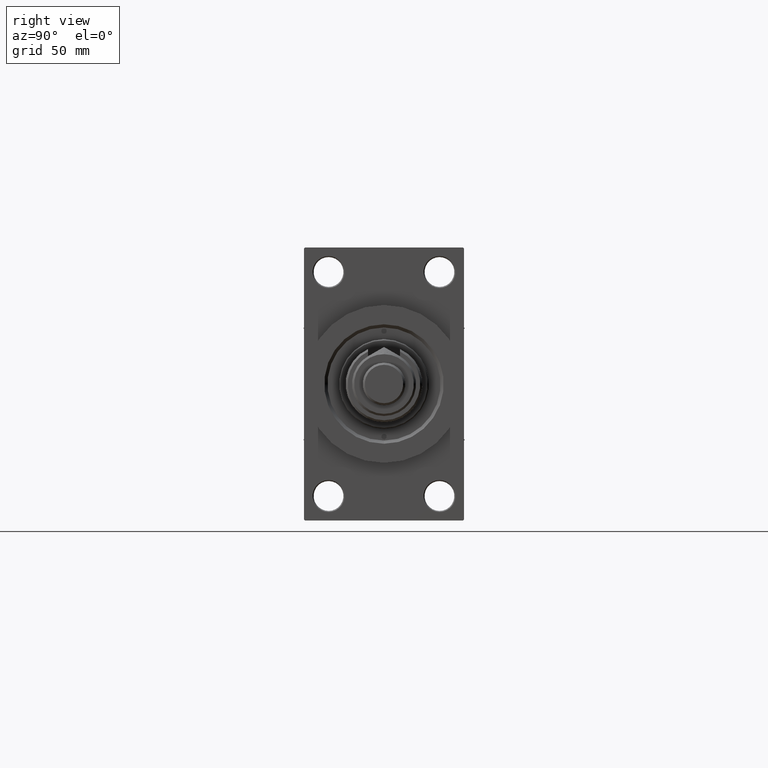
[diagram: clean part render]
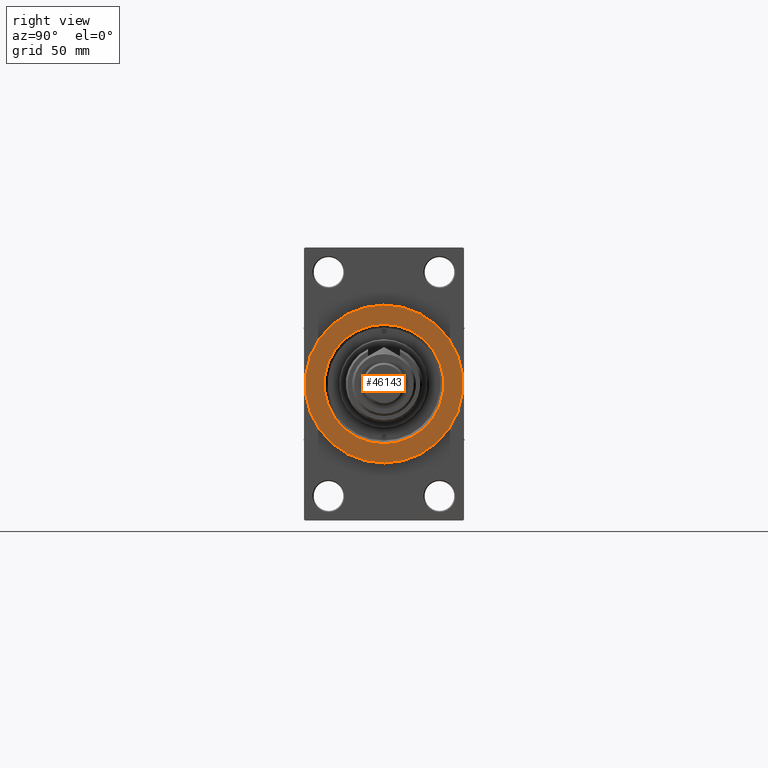
[diagram: same view with one face highlighted and labeled with its STEP entity id]
A machine part, right view. The second image highlights one B-rep face of the part: STEP entity #46143.
In plain terms, the highlighted planar face has unit normal (1, 0, 0).
Its self-contained STEP definition (entity closure, byte-faithful):
#3921 = VERTEX_POINT ( 'NONE', #7256 ) ;
#4598 = CARTESIAN_POINT ( 'NONE',  ( 184.0000000000000000, 0.000000000000000000, 0.000000000000000000 ) ) ;
#6930 = CARTESIAN_POINT ( 'NONE',  ( 184.0000000000000000, 4.531193156845206793E-15, -37.00000000000000000 ) ) ;
#7256 = CARTESIAN_POINT ( 'NONE',  ( 184.0000000000000000, 0.000000000000000000, -28.00000000000002487 ) ) ;
#7475 = PLANE ( 'NONE',  #14826 ) ;
#10164 = CARTESIAN_POINT ( 'NONE',  ( 184.0000000000000000, 3.429011037612592037E-15, 28.00000000000002487 ) ) ;
#10725 = ORIENTED_EDGE ( 'NONE', *, *, #39923, .T. ) ;
#11284 = CARTESIAN_POINT ( 'NONE',  ( 184.0000000000000000, 0.000000000000000000, 0.000000000000000000 ) ) ;
#11463 = CIRCLE ( 'NONE', #33364, 28.00000000000002487 ) ;
#12610 = DIRECTION ( 'NONE',  ( 0.000000000000000000, 0.000000000000000000, -1.000000000000000000 ) ) ;
#14602 = CARTESIAN_POINT ( 'NONE',  ( 184.0000000000000000, 0.000000000000000000, 0.000000000000000000 ) ) ;
#14826 = AXIS2_PLACEMENT_3D ( 'NONE', #14602, #30858, #37979 ) ;
#15106 = FACE_BOUND ( 'NONE', #31946, .T. ) ;
#15207 = CARTESIAN_POINT ( 'NONE',  ( 184.0000000000000000, 0.000000000000000000, 0.000000000000000000 ) ) ;
#15577 = ORIENTED_EDGE ( 'NONE', *, *, #22669, .T. ) ;
#16171 = DIRECTION ( 'NONE',  ( 1.000000000000000000, 0.000000000000000000, 0.000000000000000000 ) ) ;
#16498 = CIRCLE ( 'NONE', #19747, 37.00000000000000000 ) ;
#18838 = ORIENTED_EDGE ( 'NONE', *, *, #24659, .T. ) ;
#18907 = EDGE_CURVE ( 'NONE', #50239, #47809, #30973, .T. ) ;
#19747 = AXIS2_PLACEMENT_3D ( 'NONE', #11284, #34654, #22218 ) ;
#22043 = AXIS2_PLACEMENT_3D ( 'NONE', #32415, #16171, #12610 ) ;
#22218 = DIRECTION ( 'NONE',  ( 0.000000000000000000, 0.000000000000000000, -1.000000000000000000 ) ) ;
#22669 = EDGE_CURVE ( 'NONE', #47809, #50239, #16498, .T. ) ;
#24659 = EDGE_CURVE ( 'NONE', #3921, #24785, #44995, .T. ) ;
#24785 = VERTEX_POINT ( 'NONE', #10164 ) ;
#26307 = AXIS2_PLACEMENT_3D ( 'NONE', #4598, #47780, #47039 ) ;
#30858 = DIRECTION ( 'NONE',  ( 1.000000000000000000, 0.000000000000000000, 0.000000000000000000 ) ) ;
#30973 = CIRCLE ( 'NONE', #22043, 37.00000000000000000 ) ;
#31946 = EDGE_LOOP ( 'NONE', ( #18838, #10725 ) ) ;
#32415 = CARTESIAN_POINT ( 'NONE',  ( 184.0000000000000000, 0.000000000000000000, 0.000000000000000000 ) ) ;
#33364 = AXIS2_PLACEMENT_3D ( 'NONE', #15207, #49276, #45975 ) ;
#34654 = DIRECTION ( 'NONE',  ( 1.000000000000000000, 0.000000000000000000, 0.000000000000000000 ) ) ;
#35583 = EDGE_LOOP ( 'NONE', ( #15577, #49087 ) ) ;
#35956 = CARTESIAN_POINT ( 'NONE',  ( 184.0000000000000000, 0.000000000000000000, 37.00000000000000000 ) ) ;
#37723 = FACE_OUTER_BOUND ( 'NONE', #35583, .T. ) ;
#37979 = DIRECTION ( 'NONE',  ( 0.000000000000000000, 0.000000000000000000, -1.000000000000000000 ) ) ;
#39923 = EDGE_CURVE ( 'NONE', #24785, #3921, #11463, .T. ) ;
#44995 = CIRCLE ( 'NONE', #26307, 28.00000000000002487 ) ;
#45975 = DIRECTION ( 'NONE',  ( 0.000000000000000000, 0.000000000000000000, -1.000000000000000000 ) ) ;
#46143 = ADVANCED_FACE ( 'NONE', ( #15106, #37723 ), #7475, .T. ) ;
#47039 = DIRECTION ( 'NONE',  ( 0.000000000000000000, 0.000000000000000000, -1.000000000000000000 ) ) ;
#47780 = DIRECTION ( 'NONE',  ( -1.000000000000000000, -0.000000000000000000, -0.000000000000000000 ) ) ;
#47809 = VERTEX_POINT ( 'NONE', #35956 ) ;
#49087 = ORIENTED_EDGE ( 'NONE', *, *, #18907, .T. ) ;
#49276 = DIRECTION ( 'NONE',  ( -1.000000000000000000, -0.000000000000000000, -0.000000000000000000 ) ) ;
#50239 = VERTEX_POINT ( 'NONE', #6930 ) ;